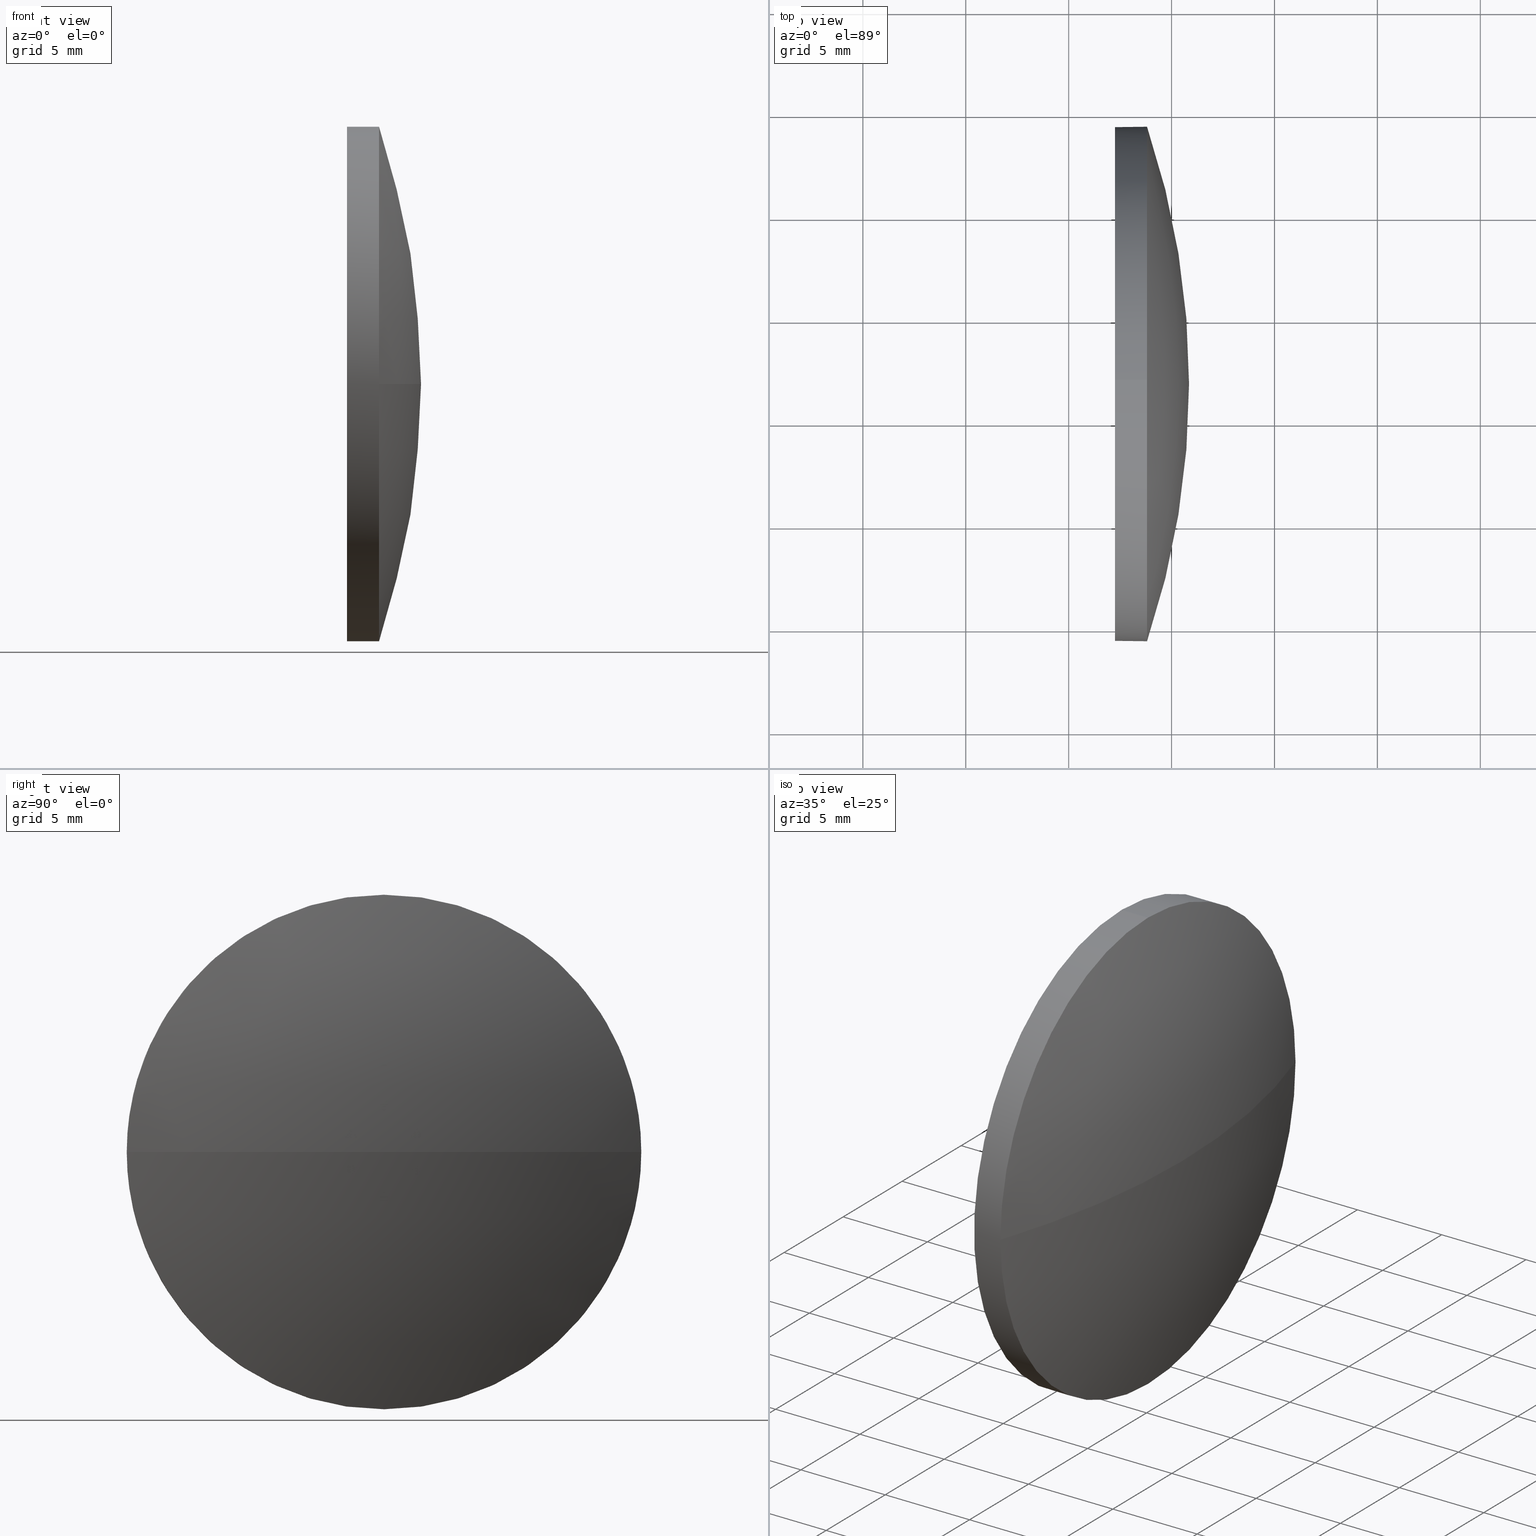
[diagram: canonical four-view strip — front | top / right | iso, engineering-drawing reading convention]
A machine part, canonical four-view strip (front | top / right | iso — engineering-drawing reading convention). The complete STEP part file that produces these views, byte-faithful:
ISO-10303-21;
HEADER;
FILE_DESCRIPTION (( 'STEP AP214' ),
    '1' );
FILE_NAME ('100128.STEP',
    '2019-05-14T09:14:15',
    ( '' ),
    ( '' ),
    'SwSTEP 2.0',
    'SolidWorks 2016',
    '' );
FILE_SCHEMA (( 'AUTOMOTIVE_DESIGN' ));
ENDSEC;

DATA;
#1 = STYLED_ITEM ( 'NONE', ( #23 ), #102 ) ;
#2 = ORIENTED_EDGE ( 'NONE', *, *, #20, .T. ) ;
#3 = VERTEX_POINT ( 'NONE', #103 ) ;
#4 = FACE_OUTER_BOUND ( 'NONE', #112, .T. ) ;
#5 = CARTESIAN_POINT ( 'NONE',  ( 658.8084244515589500, 181.8210075417636100, 0.0000000000000000000 ) ) ;
#6 = CARTESIAN_POINT ( 'NONE',  ( 658.8084244515589500, 194.3210075417636900, 1.530808498934192300E-015 ) ) ;
#7 = DIRECTION ( 'NONE',  ( 0.0000000000000000000, -1.000000000000000000, 0.0000000000000000000 ) ) ;
#8 = CIRCLE ( 'NONE', #159, 39.31656862745100500 ) ;
#9 = DIRECTION ( 'NONE',  ( 0.0000000000000000000, -1.224646799147353200E-016, 1.000000000000000000 ) ) ;
#10 = DIRECTION ( 'NONE',  ( 1.000000000000000000, 0.0000000000000000000, 0.0000000000000000000 ) ) ;
#11 = COLOUR_RGB ( '',1.000000000000000000, 1.000000000000000000, 1.000000000000000000 ) ;
#12 = CARTESIAN_POINT ( 'NONE',  ( 657.2484244515591200, 181.8210075417636100, 0.0000000000000000000 ) ) ;
#13 =( GEOMETRIC_REPRESENTATION_CONTEXT ( 3 ) GLOBAL_UNCERTAINTY_ASSIGNED_CONTEXT ( ( #130 ) ) GLOBAL_UNIT_ASSIGNED_CONTEXT ( ( #38, #141, #82 ) ) REPRESENTATION_CONTEXT ( 'NONE', 'WORKASPACE' ) );
#14 =( LENGTH_UNIT ( ) NAMED_UNIT ( * ) SI_UNIT ( .MILLI., .METRE. ) );
#15 = CARTESIAN_POINT ( 'NONE',  ( 657.2484244515591200, 181.8210075417636100, -12.50000000000001100 ) ) ;
#16 = FACE_OUTER_BOUND ( 'NONE', #74, .T. ) ;
#17 = ORIENTED_EDGE ( 'NONE', *, *, #90, .T. ) ;
#18 = VERTEX_POINT ( 'NONE', #121 ) ;
#19 = MECHANICAL_DESIGN_GEOMETRIC_PRESENTATION_REPRESENTATION (  '', ( #1 ), #35 ) ;
#20 = EDGE_CURVE ( 'NONE', #63, #21, #8, .T. ) ;
#21 = VERTEX_POINT ( 'NONE', #6 ) ;
#22 = DIRECTION ( 'NONE',  ( -1.000000000000000000, -0.0000000000000000000, -0.0000000000000000000 ) ) ;
#23 = PRESENTATION_STYLE_ASSIGNMENT (( #109 ) ) ;
#24 = PRESENTATION_STYLE_ASSIGNMENT (( #55 ) ) ;
#25 = APPLICATION_CONTEXT ( 'automotive_design' ) ;
#26 = ORIENTED_EDGE ( 'NONE', *, *, #117, .T. ) ;
#27 = DIRECTION ( 'NONE',  ( 0.0000000000000000000, -1.000000000000000000, 0.0000000000000000000 ) ) ;
#28 = DIRECTION ( 'NONE',  ( 1.000000000000000000, 0.0000000000000000000, 0.0000000000000000000 ) ) ;
#29 = CARTESIAN_POINT ( 'NONE',  ( 657.2484244515591200, 181.8210075417636100, 12.50000000000001100 ) ) ;
#30 = UNCERTAINTY_MEASURE_WITH_UNIT (LENGTH_MEASURE( 1.000000000000000100E-005 ), #150, 'distance_accuracy_value', 'NONE');
#31 = EDGE_LOOP ( 'NONE', ( #133, #17, #101, #71, #88 ) ) ;
#32 = ADVANCED_FACE ( 'NONE', ( #171 ), #118, .T. ) ;
#33 = AXIS2_PLACEMENT_3D ( 'NONE', #61, #176, #62 ) ;
#34 = CYLINDRICAL_SURFACE ( 'NONE', #33, 12.50000000000001100 ) ;
#35 =( GEOMETRIC_REPRESENTATION_CONTEXT ( 3 ) GLOBAL_UNCERTAINTY_ASSIGNED_CONTEXT ( ( #58 ) ) GLOBAL_UNIT_ASSIGNED_CONTEXT ( ( #14, #183, #142 ) ) REPRESENTATION_CONTEXT ( 'NONE', 'WORKASPACE' ) );
#36 = CARTESIAN_POINT ( 'NONE',  ( 621.5318558241079900, 181.8210075417636600, 0.0000000000000000000 ) ) ;
#37 = DIRECTION ( 'NONE',  ( 0.0000000000000000000, 0.0000000000000000000, 1.000000000000000000 ) ) ;
#38 =( LENGTH_UNIT ( ) NAMED_UNIT ( * ) SI_UNIT ( .MILLI., .METRE. ) );
#39 = CARTESIAN_POINT ( 'NONE',  ( 658.8084244515589500, 181.8210075417636100, 0.0000000000000000000 ) ) ;
#40 = CIRCLE ( 'NONE', #45, 39.31656862745103400 ) ;
#41 = CARTESIAN_POINT ( 'NONE',  ( 658.8084244515589500, 169.3210075417636100, 0.0000000000000000000 ) ) ;
#42 = EDGE_CURVE ( 'NONE', #140, #114, #178, .T. ) ;
#43 = FILL_AREA_STYLE ('',( #83 ) ) ;
#44 = PRESENTATION_LAYER_ASSIGNMENT (  '', '', ( #162 ) ) ;
#45 = AXIS2_PLACEMENT_3D ( 'NONE', #36, #78, #95 ) ;
#46 = PRODUCT_DEFINITION_CONTEXT ( 'detailed design', #25, 'design' ) ;
#47 = AXIS2_PLACEMENT_3D ( 'NONE', #168, #125, #96 ) ;
#48 = PRODUCT_DEFINITION_FORMATION_WITH_SPECIFIED_SOURCE ( '�κ�', '', #137, .NOT_KNOWN. ) ;
#49 = CARTESIAN_POINT ( 'NONE',  ( 654.8828085487981500, 181.8210075417636100, -12.50000000000001100 ) ) ;
#50 = AXIS2_PLACEMENT_3D ( 'NONE', #12, #28, #54 ) ;
#51 = SHAPE_DEFINITION_REPRESENTATION ( #132, #73 ) ;
#52 = CARTESIAN_POINT ( 'NONE',  ( 658.8084244515589500, 181.8210075417636100, 0.0000000000000000000 ) ) ;
#53 =( NAMED_UNIT ( * ) PLANE_ANGLE_UNIT ( ) SI_UNIT ( $, .RADIAN. ) );
#54 = DIRECTION ( 'NONE',  ( 0.0000000000000000000, 0.0000000000000000000, -1.000000000000000000 ) ) ;
#55 = SURFACE_STYLE_USAGE ( .BOTH. , #85 ) ;
#56 = ADVANCED_FACE ( 'NONE', ( #156 ), #34, .T. ) ;
#57 = VECTOR ( 'NONE', #151, 1000.000000000000000 ) ;
#58 = UNCERTAINTY_MEASURE_WITH_UNIT (LENGTH_MEASURE( 1.000000000000000100E-005 ), #14, 'distance_accuracy_value', 'NONE');
#59 = ORIENTED_EDGE ( 'NONE', *, *, #42, .T. ) ;
#60 = CIRCLE ( 'NONE', #148, 12.50000000000001100 ) ;
#61 = CARTESIAN_POINT ( 'NONE',  ( 654.8828085487981500, 181.8210075417636100, 0.0000000000000000000 ) ) ;
#62 = DIRECTION ( 'NONE',  ( 0.0000000000000000000, 0.0000000000000000000, 1.000000000000000000 ) ) ;
#63 = VERTEX_POINT ( 'NONE', #120 ) ;
#64 = DIRECTION ( 'NONE',  ( -1.000000000000000000, -0.0000000000000000000, -0.0000000000000000000 ) ) ;
#65 = PLANE ( 'NONE',  #50 ) ;
#66 = SPHERICAL_SURFACE ( 'NONE', #113, 39.31656862745100500 ) ;
#67 = DIRECTION ( 'NONE',  ( 0.0000000000000000000, 0.0000000000000000000, 1.000000000000000000 ) ) ;
#68 =( NAMED_UNIT ( * ) SI_UNIT ( $, .STERADIAN. ) SOLID_ANGLE_UNIT ( ) );
#69 = COLOUR_RGB ( '',1.000000000000000000, 1.000000000000000000, 1.000000000000000000 ) ;
#70 = AXIS2_PLACEMENT_3D ( 'NONE', #108, #126, #10 ) ;
#71 = ORIENTED_EDGE ( 'NONE', *, *, #134, .F. ) ;
#72 = EDGE_CURVE ( 'NONE', #3, #93, #60, .T. ) ;
#73 = ADVANCED_BREP_SHAPE_REPRESENTATION ( '100128', ( #102, #70 ), #185 ) ;
#74 = EDGE_LOOP ( 'NONE', ( #106, #2, #184, #145 ) ) ;
#75 = CIRCLE ( 'NONE', #170, 12.50000000000001100 ) ;
#76 = AXIS2_PLACEMENT_3D ( 'NONE', #39, #143, #128 ) ;
#77 = EDGE_CURVE ( 'NONE', #18, #21, #75, .T. ) ;
#78 = DIRECTION ( 'NONE',  ( 0.0000000000000000000, 0.0000000000000000000, -1.000000000000000000 ) ) ;
#79 = EDGE_LOOP ( 'NONE', ( #181, #86, #166, #110 ) ) ;
#80 = PRODUCT_DEFINITION ( 'δ֪', '', #48, #46 ) ;
#81 = DIRECTION ( 'NONE',  ( 0.0000000000000000000, 0.0000000000000000000, 1.000000000000000000 ) ) ;
#82 =( NAMED_UNIT ( * ) SI_UNIT ( $, .STERADIAN. ) SOLID_ANGLE_UNIT ( ) );
#83 = FILL_AREA_STYLE_COLOUR ( '', #69 ) ;
#84 = VECTOR ( 'NONE', #104, 1000.000000000000000 ) ;
#85 = SURFACE_SIDE_STYLE ('',( #174 ) ) ;
#86 = ORIENTED_EDGE ( 'NONE', *, *, #89, .T. ) ;
#87 = SURFACE_SIDE_STYLE ('',( #169 ) ) ;
#88 = ORIENTED_EDGE ( 'NONE', *, *, #77, .T. ) ;
#89 = EDGE_CURVE ( 'NONE', #63, #93, #40, .T. ) ;
#90 = EDGE_CURVE ( 'NONE', #3, #114, #139, .T. ) ;
#91 = ADVANCED_FACE ( 'NONE', ( #4 ), #147, .T. ) ;
#92 = CIRCLE ( 'NONE', #47, 12.50000000000001100 ) ;
#93 = VERTEX_POINT ( 'NONE', #41 ) ;
#94 = DIRECTION ( 'NONE',  ( 0.0000000000000000000, 0.0000000000000000000, 1.000000000000000000 ) ) ;
#95 = DIRECTION ( 'NONE',  ( -1.000000000000000000, 0.0000000000000000000, 0.0000000000000000000 ) ) ;
#96 = DIRECTION ( 'NONE',  ( 0.0000000000000000000, 0.0000000000000000000, 1.000000000000000000 ) ) ;
#97 = ORIENTED_EDGE ( 'NONE', *, *, #117, .F. ) ;
#98 = DIRECTION ( 'NONE',  ( -1.000000000000000000, -0.0000000000000000000, -0.0000000000000000000 ) ) ;
#99 = FILL_AREA_STYLE ('',( #167 ) ) ;
#100 = PRODUCT_RELATED_PRODUCT_CATEGORY ( 'part', '', ( #137 ) ) ;
#101 = ORIENTED_EDGE ( 'NONE', *, *, #42, .F. ) ;
#102 = MANIFOLD_SOLID_BREP ( '��ת1', #115 ) ;
#103 = CARTESIAN_POINT ( 'NONE',  ( 658.8084244515589500, 181.8210075417636100, -12.50000000000001100 ) ) ;
#104 = DIRECTION ( 'NONE',  ( -1.000000000000000000, -0.0000000000000000000, -0.0000000000000000000 ) ) ;
#105 = CARTESIAN_POINT ( 'NONE',  ( 621.5318558241079900, 181.8210075417636600, 0.0000000000000000000 ) ) ;
#106 = ORIENTED_EDGE ( 'NONE', *, *, #89, .F. ) ;
#107 = CARTESIAN_POINT ( 'NONE',  ( 621.5318558241079900, 181.8210075417636600, 0.0000000000000000000 ) ) ;
#108 = CARTESIAN_POINT ( 'NONE',  ( 0.0000000000000000000, 0.0000000000000000000, 0.0000000000000000000 ) ) ;
#109 = SURFACE_STYLE_USAGE ( .BOTH. , #87 ) ;
#110 = ORIENTED_EDGE ( 'NONE', *, *, #157, .F. ) ;
#111 = AXIS2_PLACEMENT_3D ( 'NONE', #164, #177, #37 ) ;
#112 = EDGE_LOOP ( 'NONE', ( #161, #172, #155, #186, #97 ) ) ;
#113 = AXIS2_PLACEMENT_3D ( 'NONE', #107, #129, #27 ) ;
#114 = VERTEX_POINT ( 'NONE', #15 ) ;
#115 = CLOSED_SHELL ( 'NONE', ( #56, #136, #32, #91, #158 ) ) ;
#116 = AXIS2_PLACEMENT_3D ( 'NONE', #52, #98, #67 ) ;
#117 = EDGE_CURVE ( 'NONE', #114, #140, #92, .T. ) ;
#118 = SPHERICAL_SURFACE ( 'NONE', #122, 39.31656862745100500 ) ;
#119 = DIRECTION ( 'NONE',  ( 0.0000000000000000000, 0.0000000000000000000, 1.000000000000000000 ) ) ;
#120 = CARTESIAN_POINT ( 'NONE',  ( 660.8484244515590300, 181.8210075417636600, 0.0000000000000000000 ) ) ;
#121 = CARTESIAN_POINT ( 'NONE',  ( 658.8084244515589500, 181.8210075417636100, 12.50000000000001100 ) ) ;
#122 = AXIS2_PLACEMENT_3D ( 'NONE', #105, #119, #7 ) ;
#123 = APPLICATION_PROTOCOL_DEFINITION ( 'draft international standard', 'automotive_design', 1998, #25 ) ;
#124 = FACE_OUTER_BOUND ( 'NONE', #180, .T. ) ;
#125 = DIRECTION ( 'NONE',  ( -1.000000000000000000, -0.0000000000000000000, -0.0000000000000000000 ) ) ;
#126 = DIRECTION ( 'NONE',  ( 0.0000000000000000000, 0.0000000000000000000, 1.000000000000000000 ) ) ;
#127 = MECHANICAL_DESIGN_GEOMETRIC_PRESENTATION_REPRESENTATION (  '', ( #162 ), #13 ) ;
#128 = DIRECTION ( 'NONE',  ( 0.0000000000000000000, 0.0000000000000000000, 1.000000000000000000 ) ) ;
#129 = DIRECTION ( 'NONE',  ( 0.0000000000000000000, 0.0000000000000000000, 1.000000000000000000 ) ) ;
#130 = UNCERTAINTY_MEASURE_WITH_UNIT (LENGTH_MEASURE( 1.000000000000000100E-005 ), #38, 'distance_accuracy_value', 'NONE');
#131 = PRESENTATION_LAYER_ASSIGNMENT (  '', '', ( #1 ) ) ;
#132 = PRODUCT_DEFINITION_SHAPE ( 'NONE', 'NONE',  #80 ) ;
#133 = ORIENTED_EDGE ( 'NONE', *, *, #157, .T. ) ;
#134 = EDGE_CURVE ( 'NONE', #18, #140, #144, .T. ) ;
#135 = AXIS2_PLACEMENT_3D ( 'NONE', #179, #64, #175 ) ;
#136 = ADVANCED_FACE ( 'NONE', ( #16 ), #66, .T. ) ;
#137 = PRODUCT ( '100128', '100128', '', ( #182 ) ) ;
#138 = DIRECTION ( 'NONE',  ( -1.000000000000000000, -0.0000000000000000000, -0.0000000000000000000 ) ) ;
#139 = LINE ( 'NONE', #49, #84 ) ;
#140 = VERTEX_POINT ( 'NONE', #29 ) ;
#141 =( NAMED_UNIT ( * ) PLANE_ANGLE_UNIT ( ) SI_UNIT ( $, .RADIAN. ) );
#142 =( NAMED_UNIT ( * ) SI_UNIT ( $, .STERADIAN. ) SOLID_ANGLE_UNIT ( ) );
#143 = DIRECTION ( 'NONE',  ( -1.000000000000000000, -0.0000000000000000000, -0.0000000000000000000 ) ) ;
#144 = LINE ( 'NONE', #154, #57 ) ;
#145 = ORIENTED_EDGE ( 'NONE', *, *, #146, .F. ) ;
#146 = EDGE_CURVE ( 'NONE', #93, #18, #165, .T. ) ;
#147 = CYLINDRICAL_SURFACE ( 'NONE', #135, 12.50000000000001100 ) ;
#148 = AXIS2_PLACEMENT_3D ( 'NONE', #5, #138, #81 ) ;
#149 = CARTESIAN_POINT ( 'NONE',  ( 621.5318558241079900, 181.8210075417636600, 0.0000000000000000000 ) ) ;
#150 =( LENGTH_UNIT ( ) NAMED_UNIT ( * ) SI_UNIT ( .MILLI., .METRE. ) );
#151 = DIRECTION ( 'NONE',  ( -1.000000000000000000, -0.0000000000000000000, -0.0000000000000000000 ) ) ;
#152 = APPLICATION_PROTOCOL_DEFINITION ( 'draft international standard', 'automotive_design', 1998, #153 ) ;
#153 = APPLICATION_CONTEXT ( 'automotive_design' ) ;
#154 = CARTESIAN_POINT ( 'NONE',  ( 654.8828085487981500, 181.8210075417636100, 12.50000000000001100 ) ) ;
#155 = ORIENTED_EDGE ( 'NONE', *, *, #146, .T. ) ;
#156 = FACE_OUTER_BOUND ( 'NONE', #31, .T. ) ;
#157 = EDGE_CURVE ( 'NONE', #21, #3, #160, .T. ) ;
#158 = ADVANCED_FACE ( 'NONE', ( #124 ), #65, .F. ) ;
#159 = AXIS2_PLACEMENT_3D ( 'NONE', #149, #9, #163 ) ;
#160 = CIRCLE ( 'NONE', #116, 12.50000000000001100 ) ;
#161 = ORIENTED_EDGE ( 'NONE', *, *, #90, .F. ) ;
#162 = STYLED_ITEM ( 'NONE', ( #24 ), #73 ) ;
#163 = DIRECTION ( 'NONE',  ( 0.0000000000000000000, -1.000000000000000000, -1.224646799147353200E-016 ) ) ;
#164 = CARTESIAN_POINT ( 'NONE',  ( 657.2484244515591200, 181.8210075417636100, 0.0000000000000000000 ) ) ;
#165 = CIRCLE ( 'NONE', #76, 12.50000000000001100 ) ;
#166 = ORIENTED_EDGE ( 'NONE', *, *, #72, .F. ) ;
#167 = FILL_AREA_STYLE_COLOUR ( '', #11 ) ;
#168 = CARTESIAN_POINT ( 'NONE',  ( 657.2484244515591200, 181.8210075417636100, 0.0000000000000000000 ) ) ;
#169 = SURFACE_STYLE_FILL_AREA ( #99 ) ;
#170 = AXIS2_PLACEMENT_3D ( 'NONE', #173, #22, #94 ) ;
#171 = FACE_OUTER_BOUND ( 'NONE', #79, .T. ) ;
#172 = ORIENTED_EDGE ( 'NONE', *, *, #72, .T. ) ;
#173 = CARTESIAN_POINT ( 'NONE',  ( 658.8084244515589500, 181.8210075417636100, 0.0000000000000000000 ) ) ;
#174 = SURFACE_STYLE_FILL_AREA ( #43 ) ;
#175 = DIRECTION ( 'NONE',  ( 0.0000000000000000000, 0.0000000000000000000, 1.000000000000000000 ) ) ;
#176 = DIRECTION ( 'NONE',  ( -1.000000000000000000, -0.0000000000000000000, -0.0000000000000000000 ) ) ;
#177 = DIRECTION ( 'NONE',  ( -1.000000000000000000, -0.0000000000000000000, -0.0000000000000000000 ) ) ;
#178 = CIRCLE ( 'NONE', #111, 12.50000000000001100 ) ;
#179 = CARTESIAN_POINT ( 'NONE',  ( 654.8828085487981500, 181.8210075417636100, 0.0000000000000000000 ) ) ;
#180 = EDGE_LOOP ( 'NONE', ( #59, #26 ) ) ;
#181 = ORIENTED_EDGE ( 'NONE', *, *, #20, .F. ) ;
#182 = PRODUCT_CONTEXT ( 'NONE', #153, 'mechanical' ) ;
#183 =( NAMED_UNIT ( * ) PLANE_ANGLE_UNIT ( ) SI_UNIT ( $, .RADIAN. ) );
#184 = ORIENTED_EDGE ( 'NONE', *, *, #77, .F. ) ;
#185 =( GEOMETRIC_REPRESENTATION_CONTEXT ( 3 ) GLOBAL_UNCERTAINTY_ASSIGNED_CONTEXT ( ( #30 ) ) GLOBAL_UNIT_ASSIGNED_CONTEXT ( ( #150, #53, #68 ) ) REPRESENTATION_CONTEXT ( 'NONE', 'WORKASPACE' ) );
#186 = ORIENTED_EDGE ( 'NONE', *, *, #134, .T. ) ;
ENDSEC;
END-ISO-10303-21;
